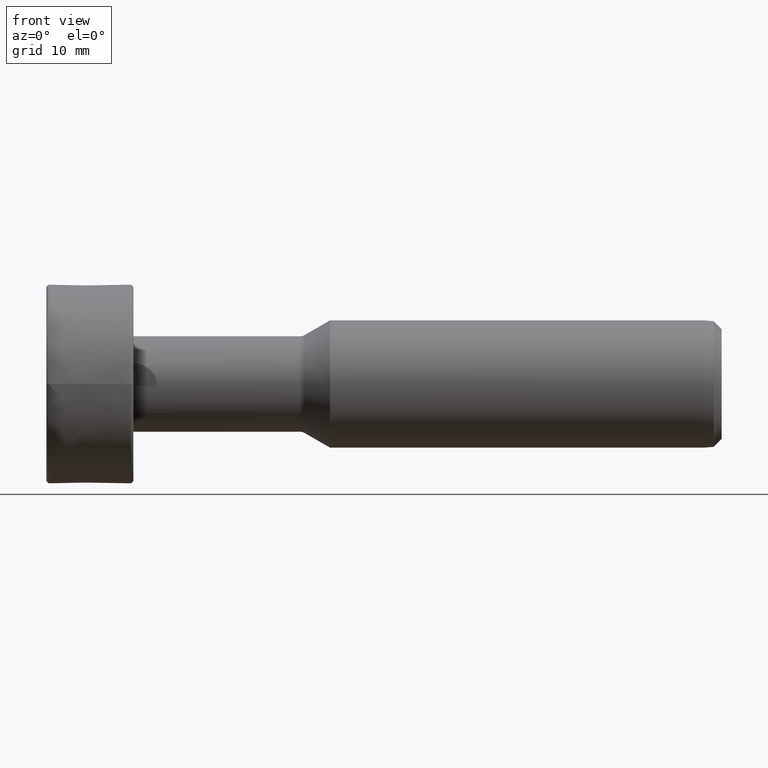
[diagram: clean part render]
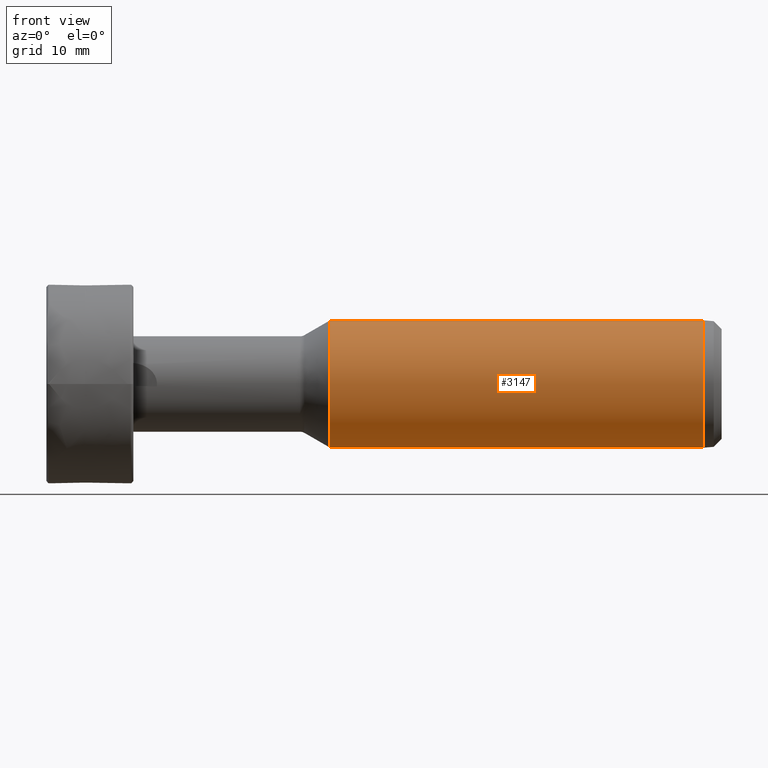
[diagram: same view with one face highlighted and labeled with its STEP entity id]
A machine part, front view. The second image highlights one B-rep face of the part: STEP entity #3147.
In plain terms, the highlighted cylindrical surface (partial cylindrical patch) has radius 8 mm, axis along (1, 0, -0).
Its self-contained STEP definition (entity closure, byte-faithful):
#52 = CIRCLE ( 'NONE', #1187, 8.000000000000001800 ) ;
#100 = DIRECTION ( 'NONE',  ( -1.000000000000000000, 0.0000000000000000000, 0.0000000000000000000 ) ) ;
#111 = CIRCLE ( 'NONE', #743, 8.000000000000001800 ) ;
#249 = AXIS2_PLACEMENT_3D ( 'NONE', #2980, #1198, #3278 ) ;
#276 = ORIENTED_EDGE ( 'NONE', *, *, #573, .T. ) ;
#284 = ORIENTED_EDGE ( 'NONE', *, *, #2029, .F. ) ;
#298 = EDGE_CURVE ( 'NONE', #972, #1807, #3195, .T. ) ;
#347 = CIRCLE ( 'NONE', #3802, 8.000000000000001800 ) ;
#447 = CYLINDRICAL_SURFACE ( 'NONE', #1701, 8.000000000000001800 ) ;
#448 = DIRECTION ( 'NONE',  ( 1.000000000000000000, -0.0000000000000000000, -0.0000000000000000000 ) ) ;
#480 = CARTESIAN_POINT ( 'NONE',  ( -2.250000000000021800, 4.111155867226457000, 6.862827218819478300 ) ) ;
#573 = EDGE_CURVE ( 'NONE', #2417, #3341, #2727, .T. ) ;
#582 = CARTESIAN_POINT ( 'NONE',  ( -2.250000000000021800, 0.0000000000000000000, 0.0000000000000000000 ) ) ;
#669 = CARTESIAN_POINT ( 'NONE',  ( -49.23589838486222400, 0.0000000000000000000, -8.000000000000001800 ) ) ;
#682 = EDGE_CURVE ( 'NONE', #758, #2064, #347, .T. ) ;
#743 = AXIS2_PLACEMENT_3D ( 'NONE', #3578, #448, #3126 ) ;
#754 = EDGE_CURVE ( 'NONE', #3341, #758, #52, .T. ) ;
#758 = VERTEX_POINT ( 'NONE', #2938 ) ;
#822 = CARTESIAN_POINT ( 'NONE',  ( -49.23589838486222400, 9.797174393178827600E-016, 8.000000000000001800 ) ) ;
#878 = DIRECTION ( 'NONE',  ( 0.0000000000000000000, 0.0000000000000000000, 1.000000000000000000 ) ) ;
#904 = CARTESIAN_POINT ( 'NONE',  ( 0.0000000000000000000, 0.0000000000000000000, 0.0000000000000000000 ) ) ;
#972 = VERTEX_POINT ( 'NONE', #3709 ) ;
#1033 = CARTESIAN_POINT ( 'NONE',  ( -49.23589838486222400, 4.111155867226459600, -6.862827218819478300 ) ) ;
#1187 = AXIS2_PLACEMENT_3D ( 'NONE', #582, #2657, #878 ) ;
#1198 = DIRECTION ( 'NONE',  ( 1.000000000000000000, -0.0000000000000000000, -0.0000000000000000000 ) ) ;
#1200 = EDGE_CURVE ( 'NONE', #1807, #3403, #111, .T. ) ;
#1220 = ORIENTED_EDGE ( 'NONE', *, *, #1200, .T. ) ;
#1255 = VERTEX_POINT ( 'NONE', #1033 ) ;
#1272 = DIRECTION ( 'NONE',  ( 1.000000000000000000, -0.0000000000000000000, -0.0000000000000000000 ) ) ;
#1276 = CARTESIAN_POINT ( 'NONE',  ( -2.250000000000021800, 0.0000000000000000000, 0.0000000000000000000 ) ) ;
#1301 = VECTOR ( 'NONE', #1649, 1000.000000000000000 ) ;
#1397 = ORIENTED_EDGE ( 'NONE', *, *, #682, .T. ) ;
#1572 = DIRECTION ( 'NONE',  ( 0.0000000000000000000, 0.0000000000000000000, 1.000000000000000000 ) ) ;
#1649 = DIRECTION ( 'NONE',  ( 1.000000000000000000, 1.214306433183765000E-016, -0.0000000000000000000 ) ) ;
#1701 = AXIS2_PLACEMENT_3D ( 'NONE', #904, #2093, #2385 ) ;
#1742 = CIRCLE ( 'NONE', #249, 8.000000000000001800 ) ;
#1807 = VERTEX_POINT ( 'NONE', #822 ) ;
#1826 = ORIENTED_EDGE ( 'NONE', *, *, #754, .T. ) ;
#1909 = CARTESIAN_POINT ( 'NONE',  ( -2.250000000000021800, 0.0000000000000000000, 0.0000000000000000000 ) ) ;
#2029 = EDGE_CURVE ( 'NONE', #972, #2064, #2102, .T. ) ;
#2051 = FACE_OUTER_BOUND ( 'NONE', #2487, .T. ) ;
#2064 = VERTEX_POINT ( 'NONE', #480 ) ;
#2071 = VECTOR ( 'NONE', #3878, 1000.000000000000000 ) ;
#2093 = DIRECTION ( 'NONE',  ( 1.000000000000000000, 1.214306433183765000E-016, -0.0000000000000000000 ) ) ;
#2102 = LINE ( 'NONE', #3123, #1301 ) ;
#2201 = DIRECTION ( 'NONE',  ( 0.0000000000000000000, 0.0000000000000000000, 1.000000000000000000 ) ) ;
#2234 = ORIENTED_EDGE ( 'NONE', *, *, #2312, .F. ) ;
#2283 = EDGE_CURVE ( 'NONE', #3403, #1255, #1742, .T. ) ;
#2312 = EDGE_CURVE ( 'NONE', #2417, #1255, #2842, .T. ) ;
#2385 = DIRECTION ( 'NONE',  ( -1.214306433183765000E-016, 1.000000000000000000, 0.0000000000000000000 ) ) ;
#2417 = VERTEX_POINT ( 'NONE', #2975 ) ;
#2487 = EDGE_LOOP ( 'NONE', ( #3600, #1220, #3663, #2234, #276, #1826, #1397, #284 ) ) ;
#2657 = DIRECTION ( 'NONE',  ( -1.000000000000000000, 0.0000000000000000000, 0.0000000000000000000 ) ) ;
#2661 = CARTESIAN_POINT ( 'NONE',  ( -25.74294919243112300, 4.111155867226458800, -6.862827218819476500 ) ) ;
#2727 = CIRCLE ( 'NONE', #2758, 8.000000000000001800 ) ;
#2758 = AXIS2_PLACEMENT_3D ( 'NONE', #1276, #3359, #1572 ) ;
#2842 = LINE ( 'NONE', #2661, #2071 ) ;
#2938 = CARTESIAN_POINT ( 'NONE',  ( -2.250000000000021800, 0.0000000000000000000, 8.000000000000001800 ) ) ;
#2975 = CARTESIAN_POINT ( 'NONE',  ( -2.250000000000021800, 4.111155867226458800, -6.862827218819478300 ) ) ;
#2980 = CARTESIAN_POINT ( 'NONE',  ( -49.23589838486222400, 0.0000000000000000000, 0.0000000000000000000 ) ) ;
#3042 = CARTESIAN_POINT ( 'NONE',  ( -49.23589838486222400, 0.0000000000000000000, 0.0000000000000000000 ) ) ;
#3123 = CARTESIAN_POINT ( 'NONE',  ( -25.74294919243112300, 4.111155867226457000, 6.862827218819476500 ) ) ;
#3126 = DIRECTION ( 'NONE',  ( 0.0000000000000000000, 0.0000000000000000000, -1.000000000000000000 ) ) ;
#3147 = ADVANCED_FACE ( 'NONE', ( #2051 ), #447, .T. ) ;
#3195 = CIRCLE ( 'NONE', #3854, 8.000000000000001800 ) ;
#3278 = DIRECTION ( 'NONE',  ( 0.0000000000000000000, 0.0000000000000000000, -1.000000000000000000 ) ) ;
#3339 = CARTESIAN_POINT ( 'NONE',  ( -2.250000000000021800, 9.797174393178827600E-016, -8.000000000000001800 ) ) ;
#3341 = VERTEX_POINT ( 'NONE', #3339 ) ;
#3356 = DIRECTION ( 'NONE',  ( 0.0000000000000000000, 0.0000000000000000000, -1.000000000000000000 ) ) ;
#3359 = DIRECTION ( 'NONE',  ( -1.000000000000000000, 0.0000000000000000000, 0.0000000000000000000 ) ) ;
#3403 = VERTEX_POINT ( 'NONE', #669 ) ;
#3578 = CARTESIAN_POINT ( 'NONE',  ( -49.23589838486222400, 0.0000000000000000000, 0.0000000000000000000 ) ) ;
#3600 = ORIENTED_EDGE ( 'NONE', *, *, #298, .T. ) ;
#3663 = ORIENTED_EDGE ( 'NONE', *, *, #2283, .T. ) ;
#3709 = CARTESIAN_POINT ( 'NONE',  ( -49.23589838486222400, 4.111155867226457900, 6.862827218819479200 ) ) ;
#3802 = AXIS2_PLACEMENT_3D ( 'NONE', #1909, #100, #2201 ) ;
#3854 = AXIS2_PLACEMENT_3D ( 'NONE', #3042, #1272, #3356 ) ;
#3878 = DIRECTION ( 'NONE',  ( -1.000000000000000000, -1.214306433183765000E-016, 0.0000000000000000000 ) ) ;